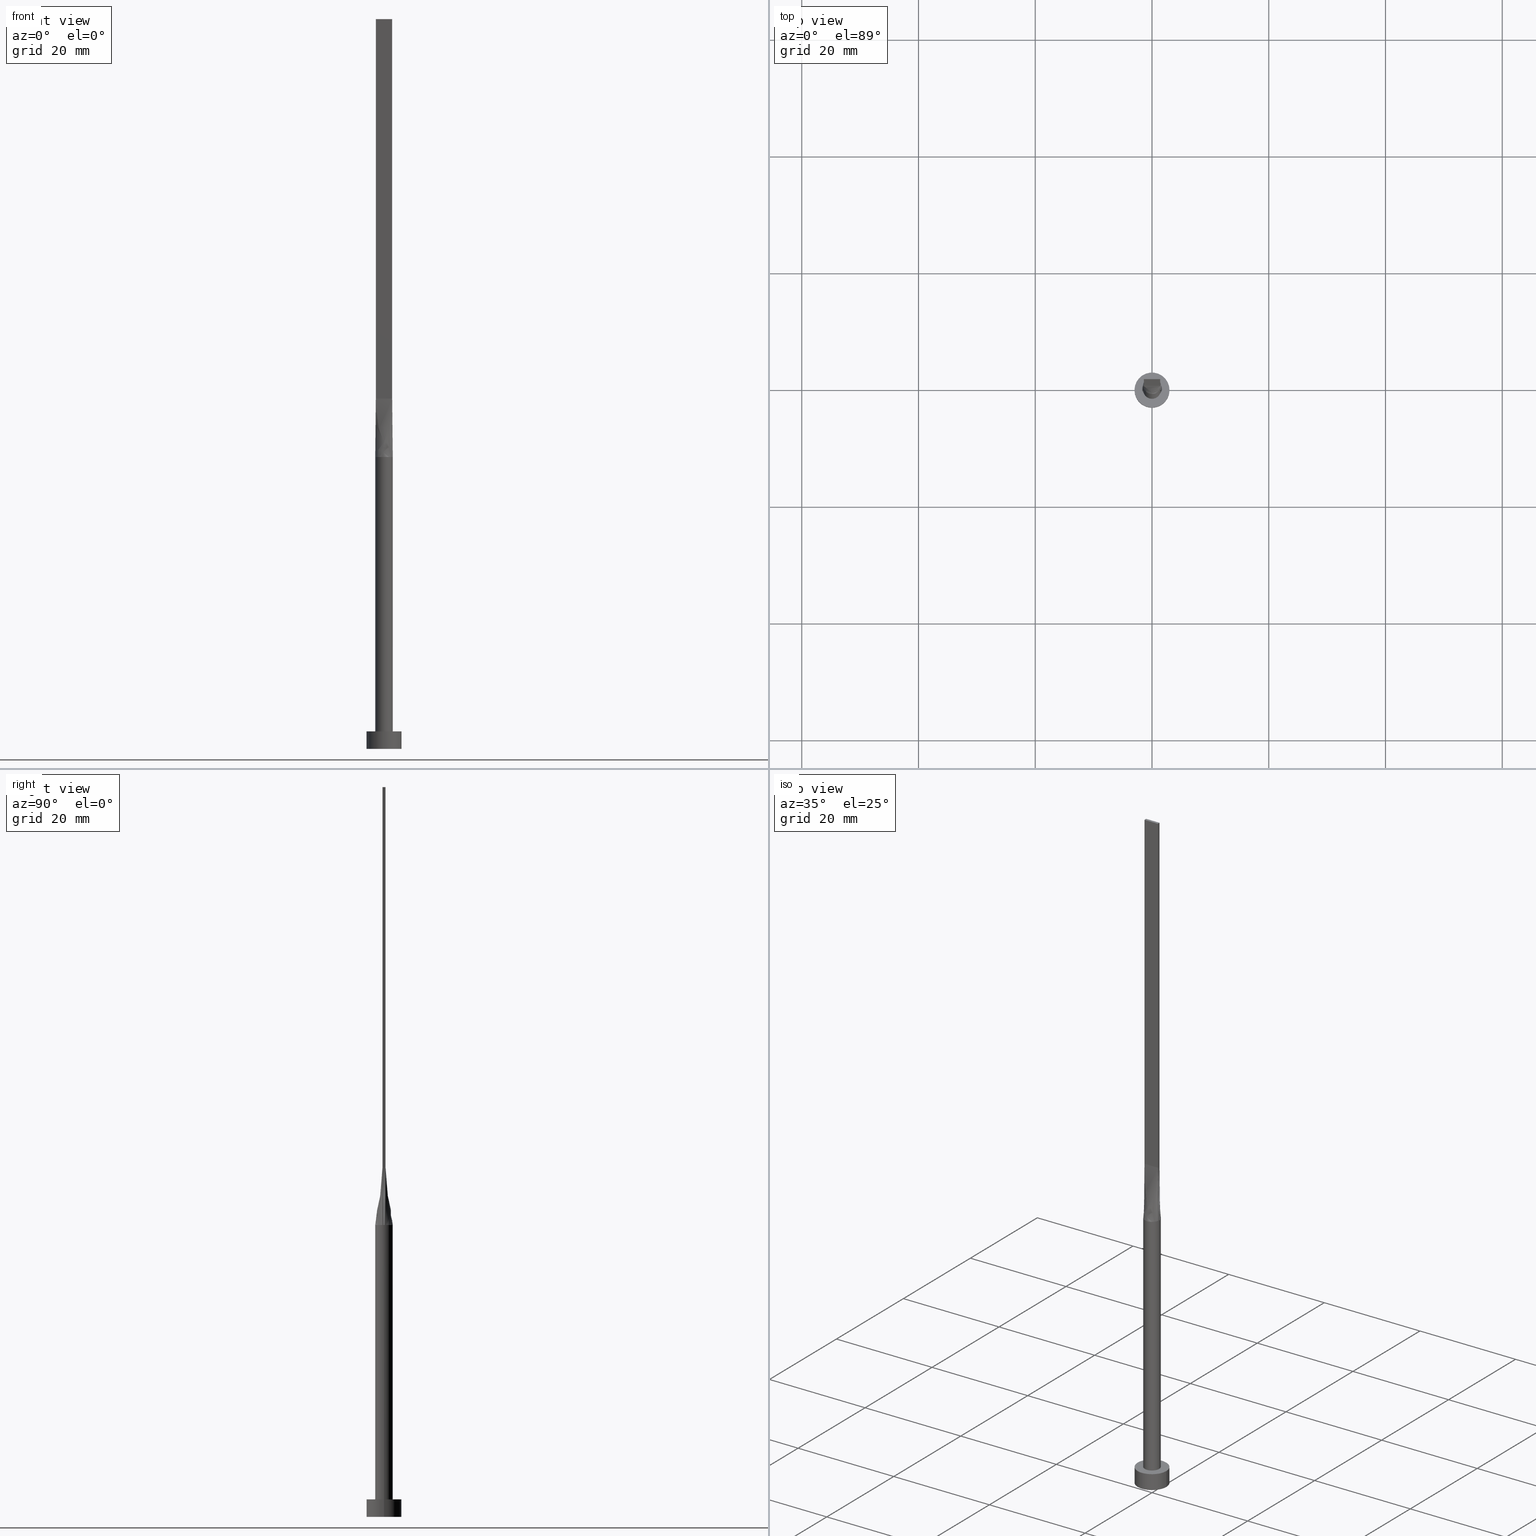
[diagram: canonical four-view strip — front | top / right | iso, engineering-drawing reading convention]
A machine part, canonical four-view strip (front | top / right | iso — engineering-drawing reading convention). The complete STEP part file that produces these views, byte-faithful:
ISO-10303-21;
HEADER;
FILE_DESCRIPTION (( 'STEP AP203' ),
    '1' );
FILE_NAME ('aee3.STEP',
    '2026-02-12T09:01:08',
    ( '' ),
    ( '' ),
    'SwSTEP 2.0',
    'SolidWorks 2019',
    '' );
FILE_SCHEMA (( 'CONFIG_CONTROL_DESIGN' ));
ENDSEC;

DATA;
#1 = EDGE_LOOP ( 'NONE', ( #327, #533 ) ) ;
#2 = CARTESIAN_POINT ( 'NONE',  ( -1.499909062348296462, -1.026848616785427865E-15, 50.00000000000000000 ) ) ;
#3 = EDGE_LOOP ( 'NONE', ( #501, #138, #59, #95 ) ) ;
#4 = CARTESIAN_POINT ( 'NONE',  ( 0.2093118330951404815, -1.500000000000000444, 50.00000000000001421 ) ) ;
#5 = CARTESIAN_POINT ( 'NONE',  ( 0.9436169880431068968, -1.179536671679308535, 50.00000000000000000 ) ) ;
#6 = APPROVAL ( #137, 'NEUR�EN�' ) ;
#7 = DATE_AND_TIME ( #234, #286 ) ;
#8 = CARTESIAN_POINT ( 'NONE',  ( -0.8166666666666675400, -0.2499999999999996669, 60.00000000000000000 ) ) ;
#9 = VECTOR ( 'NONE', #168, 999.9999999999998863 ) ;
#10 = EDGE_CURVE ( 'NONE', #381, #476, #571, .T. ) ;
#11 = AXIS2_PLACEMENT_3D ( 'NONE', #74, #467, #373 ) ;
#12 = COORDINATED_UNIVERSAL_TIME_OFFSET ( 1, 0, .AHEAD. ) ;
#13 = CARTESIAN_POINT ( 'NONE',  ( -1.492092537551969578, 0.1771593817057086351, 50.00000000000000000 ) ) ;
#14 = ORIENTED_EDGE ( 'NONE', *, *, #200, .F. ) ;
#15 = CARTESIAN_POINT ( 'NONE',  ( 1.416287091352355532, -0.5163978007200231701, 50.00000000000000711 ) ) ;
#16 = LINE ( 'NONE', #196, #131 ) ;
#17 = ORIENTED_EDGE ( 'NONE', *, *, #555, .T. ) ;
#18 = DIRECTION ( 'NONE',  ( 0.000000000000000000, 0.000000000000000000, 1.000000000000000000 ) ) ;
#19 = CARTESIAN_POINT ( 'NONE',  ( 0.000000000000000000, 0.000000000000000000, 50.00000000000000000 ) ) ;
#20 = DIRECTION ( 'NONE',  ( -0.007663904067361680499, 0.001368554297743197626, 0.9999696953576046043 ) ) ;
#21 = LOCAL_TIME ( 10, 1, 8.000000000000000000, #403 ) ;
#22 = CARTESIAN_POINT ( 'NONE',  ( -0.2333333333333336979, 0.2500000000000002220, 60.00000000000000000 ) ) ;
#23 = CC_DESIGN_SECURITY_CLASSIFICATION ( #445, ( #100 ) ) ;
#24 = CARTESIAN_POINT ( 'NONE',  ( -1.193588737715979731, 0.9257784320005616463, 49.99999999999999289 ) ) ;
#25 = EDGE_CURVE ( 'NONE', #537, #181, #294, .T. ) ;
#26 = CARTESIAN_POINT ( 'NONE',  ( 0.000000000000000000, 0.000000000000000000, 50.00000000000000000 ) ) ;
#27 = CARTESIAN_POINT ( 'NONE',  ( 1.476641363262723106, -0.2636859577254864750, 50.00000000000000000 ) ) ;
#28 = DIRECTION ( 'NONE',  ( -1.000000000000000000, 0.000000000000000000, 0.000000000000000000 ) ) ;
#29 = CARTESIAN_POINT ( 'NONE',  ( 1.476765312825354837, 0.2637079867918904474, 50.00000000000000000 ) ) ;
#30 = DIRECTION ( 'NONE',  ( 0.000000000000000000, 0.000000000000000000, 1.000000000000000000 ) ) ;
#31 = CYLINDRICAL_SURFACE ( 'NONE', #258, 1.500000000000000222 ) ;
#32 = ADVANCED_FACE ( 'NONE', ( #468 ), #300, .F. ) ;
#33 = PERSON_AND_ORGANIZATION ( #547, #306 ) ;
#34 = AXIS2_PLACEMENT_3D ( 'NONE', #104, #538, #317 ) ;
#35 = EDGE_LOOP ( 'NONE', ( #404, #46, #324, #185, #490, #385 ) ) ;
#36 = CARTESIAN_POINT ( 'NONE',  ( 0.000000000000000000, 0.000000000000000000, 3.000000000000000000 ) ) ;
#37 = ORIENTED_EDGE ( 'NONE', *, *, #217, .F. ) ;
#38 = CARTESIAN_POINT ( 'NONE',  ( -1.438320681631361619, -0.2568429788627425991, 55.00000000000000711 ) ) ;
#39 = CARTESIAN_POINT ( 'NONE',  ( -1.399999999999999911, -0.2499999999999996392, 60.00000000000000711 ) ) ;
#40 = EDGE_CURVE ( 'NONE', #287, #282, #515, .T. ) ;
#41 = CARTESIAN_POINT ( 'NONE',  ( 1.399999999999999911, -0.2499999999999997780, 125.0000000000000000 ) ) ;
#42 = B_SPLINE_SURFACE_WITH_KNOTS ( 'NONE', 3, 1, ( 
 ( #186, #322 ),
 ( #13, #193 ),
 ( #152, #150 ),
 ( #452, #540 ),
 ( #457, #96 ),
 ( #369, #491 ) ),
 .UNSPECIFIED., .F., .F., .F.,
 ( 4, 2, 4 ),
 ( 2, 2 ),
 ( 0.000000000000000000, 0.5000000000000000000, 1.000000000000000000 ),
 ( 0.000000000000000000, 1.000000000000000000 ),
 .UNSPECIFIED. ) ;
#43 = CIRCLE ( 'NONE', #407, 1.500000000000000222 ) ;
#44 = ORIENTED_EDGE ( 'NONE', *, *, #386, .T. ) ;
#45 = CARTESIAN_POINT ( 'NONE',  ( -1.438320681631361619, 0.2568429788627429322, 55.00000000000000711 ) ) ;
#46 = ORIENTED_EDGE ( 'NONE', *, *, #56, .F. ) ;
#47 = CARTESIAN_POINT ( 'NONE',  ( -1.283333333333333437, -0.2499999999999996669, 60.00000000000000711 ) ) ;
#48 = VERTEX_POINT ( 'NONE', #437 ) ;
#49 = CARTESIAN_POINT ( 'NONE',  ( -1.416287091352355532, -0.5163978007200222820, 50.00000000000000711 ) ) ;
#50 = EDGE_CURVE ( 'NONE', #210, #381, #338, .T. ) ;
#51 = VECTOR ( 'NONE', #263, 999.9999999999998863 ) ;
#52 = CARTESIAN_POINT ( 'NONE',  ( -1.476641363262723328, -0.2636859577254855869, 50.00000000000000000 ) ) ;
#53 = EDGE_CURVE ( 'NONE', #262, #423, #16, .T. ) ;
#54 = PERSON_AND_ORGANIZATION_ROLE ( 'design_supplier' ) ;
#55 = CARTESIAN_POINT ( 'NONE',  ( -1.285860877433235405, -0.7868275653575071971, 49.99999999999998579 ) ) ;
#56 = EDGE_CURVE ( 'NONE', #287, #114, #517, .T. ) ;
#57 = CARTESIAN_POINT ( 'NONE',  ( -0.5833333333333345916, -0.2499999999999996669, 60.00000000000000000 ) ) ;
#58 = AXIS2_PLACEMENT_3D ( 'NONE', #440, #89, #399 ) ;
#59 = ORIENTED_EDGE ( 'NONE', *, *, #550, .F. ) ;
#60 = AXIS2_PLACEMENT_3D ( 'NONE', #175, #353, #266 ) ;
#61 = CC_DESIGN_PERSON_AND_ORGANIZATION_ASSIGNMENT ( #417, #54, ( #100 ) ) ;
#62 = CC_DESIGN_APPROVAL ( #6, ( #445 ) ) ;
#63 = CARTESIAN_POINT ( 'NONE',  ( 1.455009719257779111, 0.3848231641531748570, 50.00000000000000711 ) ) ;
#64 = DIRECTION ( 'NONE',  ( -0.000000000000000000, -0.000000000000000000, -1.000000000000000000 ) ) ;
#65 = EDGE_LOOP ( 'NONE', ( #564, #344 ) ) ;
#66 = CARTESIAN_POINT ( 'NONE',  ( 1.193588737715979509, 0.9257784320005622014, 50.00000000000000000 ) ) ;
#67 = DIRECTION ( 'NONE',  ( -0.000000000000000000, -0.000000000000000000, -1.000000000000000000 ) ) ;
#68 = DIRECTION ( 'NONE',  ( 0.000000000000000000, -1.000000000000000000, 0.000000000000000000 ) ) ;
#69 = CARTESIAN_POINT ( 'NONE',  ( 0.4178861784692547432, 1.454504042781961770, 50.00000000000000711 ) ) ;
#70 = LINE ( 'NONE', #253, #110 ) ;
#71 = CARTESIAN_POINT ( 'NONE',  ( 1.455009719257779111, 0.3848231641531748570, 50.00000000000000711 ) ) ;
#72 = AXIS2_PLACEMENT_3D ( 'NONE', #296, #245, #161 ) ;
#73 = CARTESIAN_POINT ( 'NONE',  ( -0.9436169880431073409, 1.179536671679307647, 50.00000000000000000 ) ) ;
#74 = CARTESIAN_POINT ( 'NONE',  ( 0.000000000000000000, 0.000000000000000000, 50.00000000000000000 ) ) ;
#75 = DIRECTION ( 'NONE',  ( 0.000000000000000000, -0.000000000000000000, -1.000000000000000000 ) ) ;
#76 = PLANE ( 'NONE',  #505 ) ;
#77 = CARTESIAN_POINT ( 'NONE',  ( -1.476774769252511055, 0.2637095436881764510, 50.00000000000000000 ) ) ;
#78 = APPLICATION_CONTEXT ( 'configuration controlled 3d designs of mechanical parts and assemblies' ) ;
#79 =( NAMED_UNIT ( * ) PLANE_ANGLE_UNIT ( ) SI_UNIT ( $, .RADIAN. ) );
#80 = DIRECTION ( 'NONE',  ( 0.000000000000000000, 0.000000000000000000, 1.000000000000000000 ) ) ;
#81 = PERSON_AND_ORGANIZATION ( #547, #306 ) ;
#82 = ADVANCED_FACE ( 'NONE', ( #507 ), #535, .T. ) ;
#83 = AXIS2_PLACEMENT_3D ( 'NONE', #379, #558, #553 ) ;
#84 = ORIENTED_EDGE ( 'NONE', *, *, #56, .T. ) ;
#85 = CARTESIAN_POINT ( 'NONE',  ( 1.476789766994309527, -0.2637122300648489515, 50.00000000000000000 ) ) ;
#86 = LINE ( 'NONE', #39, #570 ) ;
#87 = EDGE_LOOP ( 'NONE', ( #166, #556, #205, #44 ) ) ;
#88 = LINE ( 'NONE', #41, #140 ) ;
#89 = DIRECTION ( 'NONE',  ( 0.000000000000000000, 0.000000000000000000, 1.000000000000000000 ) ) ;
#90 = CIRCLE ( 'NONE', #60, 3.000000000000000444 ) ;
#91 = DATE_AND_TIME ( #318, #21 ) ;
#92 = VERTEX_POINT ( 'NONE', #510 ) ;
#93 = CYLINDRICAL_SURFACE ( 'NONE', #285, 3.000000000000000444 ) ;
#94 = PERSON_AND_ORGANIZATION ( #547, #306 ) ;
#95 = ORIENTED_EDGE ( 'NONE', *, *, #25, .T. ) ;
#96 = CARTESIAN_POINT ( 'NONE',  ( -1.399999999999999911, -0.1666666666666662411, 60.00000000000000000 ) ) ;
#97 = APPROVAL_DATE_TIME ( #495, #432 ) ;
#98 = EDGE_CURVE ( 'NONE', #210, #423, #370, .T. ) ;
#99 = DIRECTION ( 'NONE',  ( 0.000000000000000000, 0.000000000000000000, 1.000000000000000000 ) ) ;
#100 = PRODUCT_DEFINITION_FORMATION_WITH_SPECIFIED_SOURCE ( 'LIBOVOLN�', '', #267, .NOT_KNOWN. ) ;
#101 = PERSON_AND_ORGANIZATION ( #547, #306 ) ;
#102 = DIRECTION ( 'NONE',  ( -0.000000000000000000, -0.000000000000000000, -1.000000000000000000 ) ) ;
#103 = SHAPE_DEFINITION_REPRESENTATION ( #394, #427 ) ;
#104 = CARTESIAN_POINT ( 'NONE',  ( 0.000000000000000000, 0.000000000000000000, 3.000000000000000000 ) ) ;
#105 = ADVANCED_FACE ( 'NONE', ( #503 ), #120, .F. ) ;
#106 = ORIENTED_EDGE ( 'NONE', *, *, #297, .F. ) ;
#107 = CARTESIAN_POINT ( 'NONE',  ( 0.7852726932053988307, 1.293660568283136358, 50.00000000000000711 ) ) ;
#108 = CARTESIAN_POINT ( 'NONE',  ( -1.285860877433235183, 0.7868275653575075301, 50.00000000000000000 ) ) ;
#109 = EDGE_CURVE ( 'NONE', #114, #210, #453, .T. ) ;
#110 = VECTOR ( 'NONE', #326, 1000.000000000000000 ) ;
#111 = EDGE_LOOP ( 'NONE', ( #363, #106, #525, #504 ) ) ;
#112 = CARTESIAN_POINT ( 'NONE',  ( 1.166666666666666741, 0.2500000000000002220, 60.00000000000001421 ) ) ;
#113 = CARTESIAN_POINT ( 'NONE',  ( -1.399999999999999911, -0.2499999999999996392, 125.0000000000000000 ) ) ;
#114 = VERTEX_POINT ( 'NONE', #336 ) ;
#115 = CARTESIAN_POINT ( 'NONE',  ( 0.5833333333333332593, 0.2500000000000002220, 60.00000000000000000 ) ) ;
#116 = FACE_OUTER_BOUND ( 'NONE', #552, .T. ) ;
#117 = DIRECTION ( 'NONE',  ( 1.000000000000000000, 0.000000000000000000, 0.000000000000000000 ) ) ;
#118 = CARTESIAN_POINT ( 'NONE',  ( -0.2093118330951410921, 1.500000000000000222, 50.00000000000001421 ) ) ;
#119 = CC_DESIGN_DATE_AND_TIME_ASSIGNMENT ( #275, #143, ( #445 ) ) ;
#120 = PLANE ( 'NONE',  #277 ) ;
#121 = CARTESIAN_POINT ( 'NONE',  ( 1.399999999999999911, 0.2500000000000002220, 125.0000000000000000 ) ) ;
#122 = CC_DESIGN_APPROVAL ( #432, ( #100 ) ) ;
#123 = CARTESIAN_POINT ( 'NONE',  ( -1.399999999999999911, 0.2500000000000002220, 125.0000000000000000 ) ) ;
#124 = CARTESIAN_POINT ( 'NONE',  ( 0.000000000000000000, 0.000000000000000000, 0.000000000000000000 ) ) ;
#125 = APPLICATION_PROTOCOL_DEFINITION ( 'international standard', 'config_control_design', 1994, #298 ) ;
#126 = ORIENTED_EDGE ( 'NONE', *, *, #98, .T. ) ;
#127 = ADVANCED_FACE ( 'NONE', ( #116 ), #31, .T. ) ;
#128 = CARTESIAN_POINT ( 'NONE',  ( 0.000000000000000000, 0.000000000000000000, 50.00000000000000000 ) ) ;
#129 = AXIS2_PLACEMENT_3D ( 'NONE', #139, #314, #355 ) ;
#130 = CARTESIAN_POINT ( 'NONE',  ( 1.399999999999999911, 0.2500000000000002220, 125.0000000000000000 ) ) ;
#131 = VECTOR ( 'NONE', #430, 1000.000000000000000 ) ;
#132 = VERTEX_POINT ( 'NONE', #554 ) ;
#133 = CARTESIAN_POINT ( 'NONE',  ( -1.399999999999999911, 0.2500000000000002220, 125.0000000000000000 ) ) ;
#134 = ORIENTED_EDGE ( 'NONE', *, *, #213, .F. ) ;
#135 = FACE_OUTER_BOUND ( 'NONE', #65, .T. ) ;
#136 = EDGE_CURVE ( 'NONE', #409, #48, #207, .T. ) ;
#137 = APPROVAL_STATUS ( 'not_yet_approved' ) ;
#138 = ORIENTED_EDGE ( 'NONE', *, *, #136, .F. ) ;
#139 = CARTESIAN_POINT ( 'NONE',  ( 0.000000000000000000, 0.000000000000000000, 3.000000000000000000 ) ) ;
#140 = VECTOR ( 'NONE', #526, 1000.000000000000000 ) ;
#141 = EDGE_CURVE ( 'NONE', #132, #316, #70, .T. ) ;
#142 = VECTOR ( 'NONE', #472, 1000.000000000000000 ) ;
#143 = DATE_TIME_ROLE ( 'classification_date' ) ;
#144 = ORIENTED_EDGE ( 'NONE', *, *, #249, .T. ) ;
#145 = DIRECTION ( 'NONE',  ( 0.000000000000000000, -1.000000000000000000, 0.000000000000000000 ) ) ;
#146 = APPROVAL_STATUS ( 'not_yet_approved' ) ;
#147 = CARTESIAN_POINT ( 'NONE',  ( -1.399999999999999911, -0.2499999999999996392, 60.00000000000000711 ) ) ;
#148 = ADVANCED_FACE ( 'NONE', ( #341 ), #559, .F. ) ;
#149 = SECURITY_CLASSIFICATION_LEVEL ( 'unclassified' ) ;
#150 = CARTESIAN_POINT ( 'NONE',  ( -1.399999999999999911, 0.08333333333333362014, 60.00000000000000000 ) ) ;
#151 = VECTOR ( 'NONE', #64, 1000.000000000000000 ) ;
#152 = CARTESIAN_POINT ( 'NONE',  ( -1.499818124696592481, 0.08857969085285440081, 50.00000000000000000 ) ) ;
#153 = ORIENTED_EDGE ( 'NONE', *, *, #550, .T. ) ;
#154 = CARTESIAN_POINT ( 'NONE',  ( -1.166666666666666963, -0.2499999999999996669, 60.00000000000000711 ) ) ;
#155 = CARTESIAN_POINT ( 'NONE',  ( 1.499818124696592481, -0.08857969085285472000, 50.00000000000000000 ) ) ;
#156 = ORIENTED_EDGE ( 'NONE', *, *, #223, .T. ) ;
#157 = DIRECTION ( 'NONE',  ( 0.000000000000000000, 0.000000000000000000, 1.000000000000000000 ) ) ;
#158 = DIRECTION ( 'NONE',  ( -1.000000000000000000, 0.000000000000000000, 0.000000000000000000 ) ) ;
#159 = EDGE_LOOP ( 'NONE', ( #239, #243, #493, #448, #309 ) ) ;
#160 = CARTESIAN_POINT ( 'NONE',  ( 0.9333333333333334592, 0.2500000000000002220, 60.00000000000000711 ) ) ;
#161 = DIRECTION ( 'NONE',  ( -1.000000000000000000, 5.808225924029488744E-17, 0.000000000000000000 ) ) ;
#162 = CARTESIAN_POINT ( 'NONE',  ( 1.416287091352355976, 0.5163978007200227260, 50.00000000000000711 ) ) ;
#163 = CC_DESIGN_DATE_AND_TIME_ASSIGNMENT ( #192, #411, ( #365 ) ) ;
#164 = CARTESIAN_POINT ( 'NONE',  ( 1.399999999999999911, -0.2499999999999997780, 125.0000000000000000 ) ) ;
#165 = DIRECTION ( 'NONE',  ( 0.000000000000000000, 0.000000000000000000, 1.000000000000000000 ) ) ;
#166 = ORIENTED_EDGE ( 'NONE', *, *, #281, .T. ) ;
#167 = CARTESIAN_POINT ( 'NONE',  ( -0.9333333333333335702, 0.2500000000000002220, 60.00000000000000000 ) ) ;
#168 = DIRECTION ( 'NONE',  ( -0.007663904067361702183, -0.001368554297743154041, 0.9999696953576046043 ) ) ;
#169 = AXIS2_PLACEMENT_3D ( 'NONE', #500, #414, #361 ) ;
#170 = LINE ( 'NONE', #179, #389 ) ;
#171 = CARTESIAN_POINT ( 'NONE',  ( -1.399999999999999911, 0.2500000000000002220, 60.00000000000000711 ) ) ;
#172 = DIRECTION ( 'NONE',  ( -0.000000000000000000, 0.000000000000000000, -1.000000000000000000 ) ) ;
#173 = EDGE_CURVE ( 'NONE', #92, #520, #384, .T. ) ;
#174 = VECTOR ( 'NONE', #332, 1000.000000000000000 ) ;
#175 = CARTESIAN_POINT ( 'NONE',  ( 0.000000000000000000, 0.000000000000000000, 3.000000000000000000 ) ) ;
#176 = VERTEX_POINT ( 'NONE', #471 ) ;
#177 = FACE_OUTER_BOUND ( 'NONE', #3, .T. ) ;
#178 = ORIENTED_EDGE ( 'NONE', *, *, #109, .F. ) ;
#179 = CARTESIAN_POINT ( 'NONE',  ( -1.399999999999999911, -0.2499999999999996392, 125.0000000000000000 ) ) ;
#180 = COORDINATED_UNIVERSAL_TIME_OFFSET ( 1, 0, .AHEAD. ) ;
#181 = VERTEX_POINT ( 'NONE', #566 ) ;
#182 = CARTESIAN_POINT ( 'NONE',  ( -1.455009719257779111, -0.3848231641531742464, 50.00000000000000711 ) ) ;
#183 = VECTOR ( 'NONE', #482, 999.9999999999998863 ) ;
#184 = EDGE_CURVE ( 'NONE', #262, #537, #518, .T. ) ;
#185 = ORIENTED_EDGE ( 'NONE', *, *, #499, .F. ) ;
#186 = CARTESIAN_POINT ( 'NONE',  ( -1.476641363262723328, 0.2636859577254859754, 50.00000000000000000 ) ) ;
#187 = EDGE_CURVE ( 'NONE', #388, #287, #461, .T. ) ;
#188 = CARTESIAN_POINT ( 'NONE',  ( 1.193588737715979509, -0.9257784320005624235, 49.99999999999998579 ) ) ;
#189 = CARTESIAN_POINT ( 'NONE',  ( -1.399999999999999911, -0.2499999999999996392, 125.0000000000000000 ) ) ;
#190 = VECTOR ( 'NONE', #20, 999.9999999999998863 ) ;
#191 = VECTOR ( 'NONE', #215, 1000.000000000000000 ) ;
#192 = DATE_AND_TIME ( #489, #352 ) ;
#193 = CARTESIAN_POINT ( 'NONE',  ( -1.399999999999999911, 0.1666666666666669072, 60.00000000000000000 ) ) ;
#194 = EDGE_LOOP ( 'NONE', ( #465, #481, #578, #156 ) ) ;
#195 = CARTESIAN_POINT ( 'NONE',  ( 0.9333333333333325710, -0.2499999999999997224, 60.00000000000000000 ) ) ;
#196 = CARTESIAN_POINT ( 'NONE',  ( 1.399999999999999911, 0.2500000000000002220, 125.0000000000000000 ) ) ;
#197 = EDGE_LOOP ( 'NONE', ( #548, #229, #17, #214 ) ) ;
#198 = CARTESIAN_POINT ( 'NONE',  ( -1.399999999999999911, 0.2500000000000002220, 125.0000000000000000 ) ) ;
#199 = CARTESIAN_POINT ( 'NONE',  ( 1.499818124696592481, 0.08857969085285435917, 50.00000000000000000 ) ) ;
#200 = EDGE_CURVE ( 'NONE', #423, #181, #443, .T. ) ;
#201 = AXIS2_PLACEMENT_3D ( 'NONE', #438, #30, #209 ) ;
#202 = CARTESIAN_POINT ( 'NONE',  ( 0.7852726932053988307, 1.293660568283136358, 50.00000000000000711 ) ) ;
#203 = CARTESIAN_POINT ( 'NONE',  ( 1.166666666666666075, -0.2499999999999997780, 60.00000000000000000 ) ) ;
#204 = CARTESIAN_POINT ( 'NONE',  ( 1.476641363262723106, -0.2636859577254868081, 50.00000000000000000 ) ) ;
#205 = ORIENTED_EDGE ( 'NONE', *, *, #291, .F. ) ;
#206 = FACE_OUTER_BOUND ( 'NONE', #522, .T. ) ;
#207 = LINE ( 'NONE', #113, #577 ) ;
#208 = ORIENTED_EDGE ( 'NONE', *, *, #184, .T. ) ;
#209 = DIRECTION ( 'NONE',  ( 1.000000000000000000, 0.000000000000000000, 0.000000000000000000 ) ) ;
#210 = VERTEX_POINT ( 'NONE', #347 ) ;
#211 = VECTOR ( 'NONE', #158, 1000.000000000000000 ) ;
#212 = PERSON_AND_ORGANIZATION_ROLE ( 'design_owner' ) ;
#213 = EDGE_CURVE ( 'NONE', #316, #520, #397, .T. ) ;
#214 = ORIENTED_EDGE ( 'NONE', *, *, #141, .F. ) ;
#215 = DIRECTION ( 'NONE',  ( -0.000000000000000000, -0.000000000000000000, -1.000000000000000000 ) ) ;
#216 = DIRECTION ( 'NONE',  ( 0.000000000000000000, 1.000000000000000000, 0.000000000000000000 ) ) ;
#217 = EDGE_CURVE ( 'NONE', #476, #304, #396, .T. ) ;
#218 = EDGE_CURVE ( 'NONE', #92, #132, #441, .T. ) ;
#219 = CARTESIAN_POINT ( 'NONE',  ( -1.476774769252511055, 0.2637095436881764510, 50.00000000000000000 ) ) ;
#220 = CC_DESIGN_PERSON_AND_ORGANIZATION_ASSIGNMENT ( #94, #408, ( #445 ) ) ;
#221 = ORIENTED_EDGE ( 'NONE', *, *, #25, .F. ) ;
#222 = CARTESIAN_POINT ( 'NONE',  ( -3.000000000000000444, 0.000000000000000000, 0.000000000000000000 ) ) ;
#223 = EDGE_CURVE ( 'NONE', #48, #388, #351, .T. ) ;
#224 = ORIENTED_EDGE ( 'NONE', *, *, #264, .F. ) ;
#225 = LINE ( 'NONE', #45, #183 ) ;
#226 = EDGE_CURVE ( 'NONE', #381, #181, #225, .T. ) ;
#227 = ORIENTED_EDGE ( 'NONE', *, *, #281, .F. ) ;
#228 = CARTESIAN_POINT ( 'NONE',  ( -0.4666666666666679508, -0.2499999999999996669, 60.00000000000000000 ) ) ;
#229 = ORIENTED_EDGE ( 'NONE', *, *, #173, .T. ) ;
#230 = CARTESIAN_POINT ( 'NONE',  ( -1.193588737715979731, -0.9257784320005619794, 50.00000000000000000 ) ) ;
#231 = MANIFOLD_SOLID_BREP ( 'P�idat vysunut�m5', #240 ) ;
#232 = CARTESIAN_POINT ( 'NONE',  ( -0.4178861784692555759, -1.454504042781961548, 50.00000000000001421 ) ) ;
#233 = UNCERTAINTY_MEASURE_WITH_UNIT (LENGTH_MEASURE( 1.000000000000000082E-05 ), #345, 'distance_accuracy_value', 'NONE');
#234 = CALENDAR_DATE ( 2026, 12, 2 ) ;
#235 = CARTESIAN_POINT ( 'NONE',  ( 1.399999999999999911, 0.2500000000000002220, 60.00000000000000711 ) ) ;
#236 = APPROVAL_ROLE ( '' ) ;
#237 = CARTESIAN_POINT ( 'NONE',  ( -0.1166666666666681257, -0.2499999999999996669, 60.00000000000000000 ) ) ;
#238 = CIRCLE ( 'NONE', #34, 1.500000000000000222 ) ;
#239 = ORIENTED_EDGE ( 'NONE', *, *, #10, .T. ) ;
#240 = CLOSED_SHELL ( 'NONE', ( #127, #402, #436, #406, #105, #530, #479, #82, #416, #575, #32, #348, #148, #487, #447 ) ) ;
#241 = CARTESIAN_POINT ( 'NONE',  ( 1.416287091352355976, 0.5163978007200227260, 50.00000000000000711 ) ) ;
#242 = CARTESIAN_POINT ( 'NONE',  ( 1.399999999999999911, 0.2500000000000002220, 125.0000000000000000 ) ) ;
#243 = ORIENTED_EDGE ( 'NONE', *, *, #499, .T. ) ;
#244 = CARTESIAN_POINT ( 'NONE',  ( 0.000000000000000000, 0.000000000000000000, 50.00000000000000000 ) ) ;
#245 = DIRECTION ( 'NONE',  ( 5.808225924029488744E-17, 1.000000000000000000, -0.000000000000000000 ) ) ;
#246 = CARTESIAN_POINT ( 'NONE',  ( 1.285860877433235405, 0.7868275653575075301, 49.99999999999999289 ) ) ;
#247 = CARTESIAN_POINT ( 'NONE',  ( 1.399999999999999911, 0.2500000000000002220, 60.00000000000000711 ) ) ;
#248 = CARTESIAN_POINT ( 'NONE',  ( -0.7852726932053990527, 1.293660568283136136, 50.00000000000000711 ) ) ;
#249 = EDGE_CURVE ( 'NONE', #114, #176, #581, .T. ) ;
#250 = LOCAL_TIME ( 10, 1, 8.000000000000000000, #278 ) ;
#251 = CARTESIAN_POINT ( 'NONE',  ( 0.4178861784692547432, 1.454504042781961770, 50.00000000000000711 ) ) ;
#252 = CARTESIAN_POINT ( 'NONE',  ( -0.5833333333333334814, 0.2500000000000002220, 60.00000000000000000 ) ) ;
#253 = CARTESIAN_POINT ( 'NONE',  ( -3.000000000000000444, 0.000000000000000000, 3.000000000000000000 ) ) ;
#254 = CARTESIAN_POINT ( 'NONE',  ( 1.438320681631361397, -0.2568429788627430987, 55.00000000000000711 ) ) ;
#255 = DIRECTION ( 'NONE',  ( -1.000000000000000000, 0.000000000000000000, 0.000000000000000000 ) ) ;
#256 = CARTESIAN_POINT ( 'NONE',  ( 1.399999999999999911, -0.1666666666666664631, 60.00000000000000000 ) ) ;
#257 = CARTESIAN_POINT ( 'NONE',  ( 1.500000000000000222, 1.836970198721030181E-16, 50.00000000000000000 ) ) ;
#258 = AXIS2_PLACEMENT_3D ( 'NONE', #551, #514, #28 ) ;
#259 = CARTESIAN_POINT ( 'NONE',  ( -1.476641363262723328, 0.2636859577254856424, 50.00000000000000000 ) ) ;
#260 = EDGE_CURVE ( 'NONE', #48, #282, #86, .T. ) ;
#261 = CARTESIAN_POINT ( 'NONE',  ( 1.399999999999999911, -0.2499999999999997780, 125.0000000000000000 ) ) ;
#262 = VERTEX_POINT ( 'NONE', #130 ) ;
#263 = DIRECTION ( 'NONE',  ( -0.007663904067361702183, -0.001368554297743126936, -0.9999696953576046043 ) ) ;
#264 = EDGE_CURVE ( 'NONE', #409, #508, #170, .T. ) ;
#265 = EDGE_LOOP ( 'NONE', ( #134, #313 ) ) ;
#266 = DIRECTION ( 'NONE',  ( 1.000000000000000000, 0.000000000000000000, 0.000000000000000000 ) ) ;
#267 = PRODUCT ( 'aee3', 'aee3', '', ( #343 ) ) ;
#268 = AXIS2_PLACEMENT_3D ( 'NONE', #19, #333, #563 ) ;
#269 = CIRCLE ( 'NONE', #330, 3.000000000000000444 ) ;
#270 = CARTESIAN_POINT ( 'NONE',  ( 0.000000000000000000, 0.000000000000000000, 3.000000000000000000 ) ) ;
#271 = ORIENTED_EDGE ( 'NONE', *, *, #260, .T. ) ;
#272 = DIRECTION ( 'NONE',  ( -1.000000000000000000, 0.000000000000000000, 0.000000000000000000 ) ) ;
#273 = ORIENTED_EDGE ( 'NONE', *, *, #386, .F. ) ;
#274 = FACE_OUTER_BOUND ( 'NONE', #194, .T. ) ;
#275 = DATE_AND_TIME ( #497, #342 ) ;
#276 = CARTESIAN_POINT ( 'NONE',  ( -0.7852726932053994968, -1.293660568283136136, 50.00000000000000711 ) ) ;
#277 = AXIS2_PLACEMENT_3D ( 'NONE', #124, #165, #478 ) ;
#278 = COORDINATED_UNIVERSAL_TIME_OFFSET ( 1, 0, .AHEAD. ) ;
#279 = DIRECTION ( 'NONE',  ( 1.000000000000000000, 0.000000000000000000, -0.000000000000000000 ) ) ;
#280 = CARTESIAN_POINT ( 'NONE',  ( 0.5833333333333321491, -0.2499999999999996669, 60.00000000000000000 ) ) ;
#281 = EDGE_CURVE ( 'NONE', #282, #423, #310, .T. ) ;
#282 = VERTEX_POINT ( 'NONE', #401 ) ;
#283 = CYLINDRICAL_SURFACE ( 'NONE', #83, 1.500000000000000222 ) ;
#284 = CARTESIAN_POINT ( 'NONE',  ( 1.399999999999999911, -0.08333333333333316217, 60.00000000000000000 ) ) ;
#285 = AXIS2_PLACEMENT_3D ( 'NONE', #323, #102, #272 ) ;
#286 = LOCAL_TIME ( 10, 1, 8.000000000000000000, #492 ) ;
#287 = VERTEX_POINT ( 'NONE', #85 ) ;
#288 = FACE_OUTER_BOUND ( 'NONE', #35, .T. ) ;
#289 = CARTESIAN_POINT ( 'NONE',  ( 1.438320681631361619, 0.2568429788627433208, 55.00000000000000711 ) ) ;
#290 = EDGE_LOOP ( 'NONE', ( #271, #273, #224, #360 ) ) ;
#291 = EDGE_CURVE ( 'NONE', #508, #262, #579, .T. ) ;
#292 = CARTESIAN_POINT ( 'NONE',  ( 1.283333333333332993, -0.2499999999999997780, 60.00000000000000000 ) ) ;
#293 = CARTESIAN_POINT ( 'NONE',  ( 3.000000000000000444, 3.673940397442060361E-16, 3.000000000000000000 ) ) ;
#294 = LINE ( 'NONE', #567, #142 ) ;
#295 = CARTESIAN_POINT ( 'NONE',  ( 0.9436169880431070078, 1.179536671679307869, 50.00000000000001421 ) ) ;
#296 = CARTESIAN_POINT ( 'NONE',  ( -1.399999999999999911, -0.2499999999999996392, 125.0000000000000000 ) ) ;
#297 = EDGE_CURVE ( 'NONE', #132, #92, #90, .T. ) ;
#298 = APPLICATION_CONTEXT ( 'configuration controlled 3d designs of mechanical parts and assemblies' ) ;
#299 =( GEOMETRIC_REPRESENTATION_CONTEXT ( 3 ) GLOBAL_UNCERTAINTY_ASSIGNED_CONTEXT ( ( #233 ) ) GLOBAL_UNIT_ASSIGNED_CONTEXT ( ( #345, #79, #521 ) ) REPRESENTATION_CONTEXT ( 'NONE', 'WORKASPACE' ) );
#300 = PLANE ( 'NONE',  #560 ) ;
#301 = CARTESIAN_POINT ( 'NONE',  ( 0.000000000000000000, 0.000000000000000000, 0.000000000000000000 ) ) ;
#302 = CARTESIAN_POINT ( 'NONE',  ( -0.9436169880431073409, 1.179536671679307647, 50.00000000000000000 ) ) ;
#303 = APPROVAL_STATUS ( 'not_yet_approved' ) ;
#304 = VERTEX_POINT ( 'NONE', #358 ) ;
#305 = DIRECTION ( 'NONE',  ( 1.000000000000000000, -5.808225924029488744E-17, 0.000000000000000000 ) ) ;
#306 = ORGANIZATION ( 'NEUR�EN�', 'NEUR�EN�', '' ) ;
#307 = CARTESIAN_POINT ( 'NONE',  ( -1.455009719257779111, 0.3848231641531745795, 50.00000000000000711 ) ) ;
#308 = DIRECTION ( 'NONE',  ( -0.000000000000000000, 1.000000000000000000, -0.000000000000000000 ) ) ;
#309 = ORIENTED_EDGE ( 'NONE', *, *, #226, .F. ) ;
#310 = LINE ( 'NONE', #393, #312 ) ;
#311 = DIRECTION ( 'NONE',  ( -0.000000000000000000, -0.000000000000000000, -1.000000000000000000 ) ) ;
#312 = VECTOR ( 'NONE', #308, 1000.000000000000000 ) ;
#313 = ORIENTED_EDGE ( 'NONE', *, *, #555, .F. ) ;
#314 = DIRECTION ( 'NONE',  ( -0.000000000000000000, -0.000000000000000000, -1.000000000000000000 ) ) ;
#315 = AXIS2_PLACEMENT_3D ( 'NONE', #26, #337, #117 ) ;
#316 = VERTEX_POINT ( 'NONE', #222 ) ;
#317 = DIRECTION ( 'NONE',  ( 1.000000000000000000, 0.000000000000000000, 0.000000000000000000 ) ) ;
#318 = CALENDAR_DATE ( 2026, 12, 2 ) ;
#319 = CARTESIAN_POINT ( 'NONE',  ( 0.2333333333333319215, -0.2499999999999996669, 60.00000000000000000 ) ) ;
#320 = PERSON_AND_ORGANIZATION ( #547, #306 ) ;
#321 = CC_DESIGN_PERSON_AND_ORGANIZATION_ASSIGNMENT ( #413, #456, ( #100 ) ) ;
#322 = CARTESIAN_POINT ( 'NONE',  ( -1.399999999999999911, 0.2500000000000002220, 60.00000000000000711 ) ) ;
#323 = CARTESIAN_POINT ( 'NONE',  ( 0.000000000000000000, 0.000000000000000000, 3.000000000000000000 ) ) ;
#324 = ORIENTED_EDGE ( 'NONE', *, *, #187, .F. ) ;
#325 = FACE_OUTER_BOUND ( 'NONE', #87, .T. ) ;
#326 = DIRECTION ( 'NONE',  ( -0.000000000000000000, -0.000000000000000000, -1.000000000000000000 ) ) ;
#327 = ORIENTED_EDGE ( 'NONE', *, *, #470, .F. ) ;
#328 = DIRECTION ( 'NONE',  ( 0.000000000000000000, 0.000000000000000000, 1.000000000000000000 ) ) ;
#329 = CARTESIAN_POINT ( 'NONE',  ( -1.416287091352355976, 0.5163978007200225040, 50.00000000000000711 ) ) ;
#330 = AXIS2_PLACEMENT_3D ( 'NONE', #301, #157, #462 ) ;
#331 = EDGE_LOOP ( 'NONE', ( #84, #350, #126, #227, #400 ) ) ;
#332 = DIRECTION ( 'NONE',  ( 0.000000000000000000, -1.000000000000000000, 0.000000000000000000 ) ) ;
#333 = DIRECTION ( 'NONE',  ( 0.000000000000000000, 0.000000000000000000, 1.000000000000000000 ) ) ;
#334 = CARTESIAN_POINT ( 'NONE',  ( 0.9436169880431070078, 1.179536671679307869, 50.00000000000001421 ) ) ;
#335 = DIRECTION ( 'NONE',  ( 1.000000000000000000, 0.000000000000000000, 0.000000000000000000 ) ) ;
#336 = CARTESIAN_POINT ( 'NONE',  ( 1.499909062348296462, 3.515891419768138559E-16, 50.00000000000000000 ) ) ;
#337 = DIRECTION ( 'NONE',  ( 0.000000000000000000, 0.000000000000000000, 1.000000000000000000 ) ) ;
#338 = B_SPLINE_CURVE_WITH_KNOTS ( 'NONE', 3,
 ( #29, #71, #162, #246, #428, #334, #202, #251, #433, #378, #561, #248, #302, #24, #108, #329, #425, #77 ),
 .UNSPECIFIED., .F., .F.,
 ( 4, 2, 2, 2, 2, 2, 2, 2, 4 ),
 ( 0.000000000000000000, 0.1249999999999999167, 0.2499999999999998335, 0.3749999999999998335, 0.4999999999999998890, 0.6249999999999998890, 0.7499999999999998890, 0.8750000000000000000, 1.000000000000000000 ),
 .UNSPECIFIED. ) ;
#339 = CARTESIAN_POINT ( 'NONE',  ( -1.416287091352355976, 0.5163978007200225040, 50.00000000000000711 ) ) ;
#340 = CC_DESIGN_PERSON_AND_ORGANIZATION_ASSIGNMENT ( #320, #458, ( #365 ) ) ;
#341 = FACE_OUTER_BOUND ( 'NONE', #290, .T. ) ;
#342 = LOCAL_TIME ( 10, 1, 8.000000000000000000, #12 ) ;
#343 = MECHANICAL_CONTEXT ( 'NONE', #78, 'mechanical' ) ;
#344 = ORIENTED_EDGE ( 'NONE', *, *, #218, .T. ) ;
#345 =( LENGTH_UNIT ( ) NAMED_UNIT ( * ) SI_UNIT ( .MILLI., .METRE. ) );
#346 = EDGE_LOOP ( 'NONE', ( #392, #221, #374, #371 ) ) ;
#347 = CARTESIAN_POINT ( 'NONE',  ( 1.476765312825354837, 0.2637079867918904474, 50.00000000000000000 ) ) ;
#348 = ADVANCED_FACE ( 'NONE', ( #177 ), #395, .F. ) ;
#349 = CARTESIAN_POINT ( 'NONE',  ( 0.000000000000000000, 0.000000000000000000, 0.000000000000000000 ) ) ;
#350 = ORIENTED_EDGE ( 'NONE', *, *, #109, .T. ) ;
#351 = LINE ( 'NONE', #38, #51 ) ;
#352 = LOCAL_TIME ( 10, 1, 8.000000000000000000, #180 ) ;
#353 = DIRECTION ( 'NONE',  ( 0.000000000000000000, 0.000000000000000000, 1.000000000000000000 ) ) ;
#354 = ORIENTED_EDGE ( 'NONE', *, *, #50, .F. ) ;
#355 = DIRECTION ( 'NONE',  ( -1.000000000000000000, 0.000000000000000000, 0.000000000000000000 ) ) ;
#356 = B_SPLINE_SURFACE_WITH_KNOTS ( 'NONE', 3, 1, ( 
 ( #387, #247 ),
 ( #63, #375 ),
 ( #241, #112 ),
 ( #568, #160 ),
 ( #66, #509 ),
 ( #295, #115 ),
 ( #107, #421 ),
 ( #69, #473 ),
 ( #565, #429 ),
 ( #118, #516 ),
 ( #372, #22 ),
 ( #562, #513 ),
 ( #73, #252 ),
 ( #434, #383 ),
 ( #477, #167 ),
 ( #339, #391 ),
 ( #307, #483 ),
 ( #259, #171 ) ),
 .UNSPECIFIED., .F., .F., .F.,
 ( 4, 2, 2, 2, 2, 2, 2, 2, 4 ),
 ( 2, 2 ),
 ( 0.000000000000000000, 0.1249999999999999167, 0.2499999999999998335, 0.3749999999999998335, 0.4999999999999998890, 0.6249999999999998890, 0.7499999999999998890, 0.8750000000000000000, 1.000000000000000000 ),
 ( 0.000000000000000000, 1.000000000000000000 ),
 .UNSPECIFIED. ) ;
#357 = ORIENTED_EDGE ( 'NONE', *, *, #512, .T. ) ;
#358 = CARTESIAN_POINT ( 'NONE',  ( -1.500000000000000222, 0.000000000000000000, 3.000000000000000000 ) ) ;
#359 = AXIS2_PLACEMENT_3D ( 'NONE', #270, #99, #279 ) ;
#360 = ORIENTED_EDGE ( 'NONE', *, *, #136, .T. ) ;
#361 = DIRECTION ( 'NONE',  ( 1.000000000000000000, 0.000000000000000000, -0.000000000000000000 ) ) ;
#362 = APPROVAL_DATE_TIME ( #91, #545 ) ;
#363 = ORIENTED_EDGE ( 'NONE', *, *, #173, .F. ) ;
#364 = CARTESIAN_POINT ( 'NONE',  ( 0.4178861784692542991, -1.454504042781961548, 50.00000000000000000 ) ) ;
#365 = PRODUCT_DEFINITION ( 'NEZN�M�', '', #100, #415 ) ;
#366 = LINE ( 'NONE', #494, #527 ) ;
#367 = CARTESIAN_POINT ( 'NONE',  ( -0.9333333333333340143, -0.2499999999999996669, 60.00000000000000000 ) ) ;
#368 = CC_DESIGN_APPROVAL ( #545, ( #365 ) ) ;
#369 = CARTESIAN_POINT ( 'NONE',  ( -1.476641363262723328, -0.2636859577254855869, 50.00000000000000000 ) ) ;
#370 = LINE ( 'NONE', #289, #9 ) ;
#371 = ORIENTED_EDGE ( 'NONE', *, *, #53, .T. ) ;
#372 = CARTESIAN_POINT ( 'NONE',  ( -0.4178861784692550208, 1.454504042781961326, 50.00000000000000000 ) ) ;
#373 = DIRECTION ( 'NONE',  ( 1.000000000000000000, 0.000000000000000000, 0.000000000000000000 ) ) ;
#374 = ORIENTED_EDGE ( 'NONE', *, *, #184, .F. ) ;
#375 = CARTESIAN_POINT ( 'NONE',  ( 1.283333333333333437, 0.2500000000000002220, 60.00000000000001421 ) ) ;
#376 = CARTESIAN_POINT ( 'NONE',  ( 1.492092537551969578, 0.1771593817057089126, 50.00000000000000000 ) ) ;
#377 = APPROVAL_PERSON_ORGANIZATION ( #33, #545, #236 ) ;
#378 = CARTESIAN_POINT ( 'NONE',  ( -0.2093118330951410921, 1.500000000000000222, 50.00000000000001421 ) ) ;
#379 = CARTESIAN_POINT ( 'NONE',  ( 0.000000000000000000, 0.000000000000000000, 50.00000000000000000 ) ) ;
#380 = CARTESIAN_POINT ( 'NONE',  ( 1.476641363262723328, 0.2636859577254864750, 50.00000000000000000 ) ) ;
#381 = VERTEX_POINT ( 'NONE', #219 ) ;
#382 = PRODUCT_RELATED_PRODUCT_CATEGORY ( 'detail', '', ( #267 ) ) ;
#383 = CARTESIAN_POINT ( 'NONE',  ( -0.8166666666666668739, 0.2500000000000002220, 60.00000000000000000 ) ) ;
#384 = LINE ( 'NONE', #293, #151 ) ;
#385 = ORIENTED_EDGE ( 'NONE', *, *, #470, .T. ) ;
#386 = EDGE_CURVE ( 'NONE', #508, #282, #88, .T. ) ;
#387 = CARTESIAN_POINT ( 'NONE',  ( 1.476641363262723328, 0.2636859577254862530, 50.00000000000000000 ) ) ;
#388 = VERTEX_POINT ( 'NONE', #534 ) ;
#389 = VECTOR ( 'NONE', #574, 1000.000000000000000 ) ;
#390 = AXIS2_PLACEMENT_3D ( 'NONE', #133, #484, #172 ) ;
#391 = CARTESIAN_POINT ( 'NONE',  ( -1.166666666666666963, 0.2500000000000002220, 60.00000000000000000 ) ) ;
#392 = ORIENTED_EDGE ( 'NONE', *, *, #200, .T. ) ;
#393 = CARTESIAN_POINT ( 'NONE',  ( 1.399999999999999911, 0.2500000000000002220, 60.00000000000000711 ) ) ;
#394 = PRODUCT_DEFINITION_SHAPE ( 'NONE', 'NONE',  #365 ) ;
#395 = PLANE ( 'NONE',  #390 ) ;
#396 = LINE ( 'NONE', #573, #419 ) ;
#397 = CIRCLE ( 'NONE', #58, 3.000000000000000444 ) ;
#398 = ORIENTED_EDGE ( 'NONE', *, *, #226, .T. ) ;
#399 = DIRECTION ( 'NONE',  ( 1.000000000000000000, 0.000000000000000000, 0.000000000000000000 ) ) ;
#400 = ORIENTED_EDGE ( 'NONE', *, *, #40, .F. ) ;
#401 = CARTESIAN_POINT ( 'NONE',  ( 1.399999999999999911, -0.2499999999999997780, 60.00000000000000711 ) ) ;
#402 = ADVANCED_FACE ( 'NONE', ( #485 ), #444, .T. ) ;
#403 = COORDINATED_UNIVERSAL_TIME_OFFSET ( 1, 0, .AHEAD. ) ;
#404 = ORIENTED_EDGE ( 'NONE', *, *, #249, .F. ) ;
#405 = CARTESIAN_POINT ( 'NONE',  ( -0.2093118330951414807, -1.500000000000000666, 50.00000000000000711 ) ) ;
#406 = ADVANCED_FACE ( 'NONE', ( #531, #135 ), #486, .T. ) ;
#407 = AXIS2_PLACEMENT_3D ( 'NONE', #244, #328, #335 ) ;
#408 = PERSON_AND_ORGANIZATION_ROLE ( 'classification_officer' ) ;
#409 = VERTEX_POINT ( 'NONE', #189 ) ;
#410 = CARTESIAN_POINT ( 'NONE',  ( -0.9436169880431074519, -1.179536671679307647, 50.00000000000001421 ) ) ;
#411 = DATE_TIME_ROLE ( 'creation_date' ) ;
#412 = CARTESIAN_POINT ( 'NONE',  ( 0.4666666666666653418, -0.2499999999999996669, 60.00000000000000000 ) ) ;
#413 = PERSON_AND_ORGANIZATION ( #547, #306 ) ;
#414 = DIRECTION ( 'NONE',  ( 0.000000000000000000, 0.000000000000000000, 1.000000000000000000 ) ) ;
#415 = DESIGN_CONTEXT ( 'detailed design', #298, 'design' ) ;
#416 = ADVANCED_FACE ( 'NONE', ( #549 ), #42, .T. ) ;
#417 = PERSON_AND_ORGANIZATION ( #547, #306 ) ;
#418 = CARTESIAN_POINT ( 'NONE',  ( 1.285860877433234961, -0.7868275653575079742, 50.00000000000000711 ) ) ;
#419 = VECTOR ( 'NONE', #311, 1000.000000000000000 ) ;
#420 = ORIENTED_EDGE ( 'NONE', *, *, #50, .T. ) ;
#421 = CARTESIAN_POINT ( 'NONE',  ( 0.4666666666666666186, 0.2500000000000002220, 60.00000000000000000 ) ) ;
#422 = CARTESIAN_POINT ( 'NONE',  ( 1.492092537551969356, -0.1771593817057092457, 50.00000000000000000 ) ) ;
#423 = VERTEX_POINT ( 'NONE', #235 ) ;
#424 = CARTESIAN_POINT ( 'NONE',  ( 1.399999999999999911, -0.2499999999999997780, 60.00000000000000711 ) ) ;
#425 = CARTESIAN_POINT ( 'NONE',  ( -1.455009719257779111, 0.3848231641531745795, 50.00000000000000711 ) ) ;
#426 = EDGE_CURVE ( 'NONE', #181, #48, #366, .T. ) ;
#427 = ADVANCED_BREP_SHAPE_REPRESENTATION ( 'aee3', ( #231, #557 ), #299 ) ;
#428 = CARTESIAN_POINT ( 'NONE',  ( 1.193588737715979509, 0.9257784320005622014, 50.00000000000000000 ) ) ;
#429 = CARTESIAN_POINT ( 'NONE',  ( 0.1166666666666661967, 0.2500000000000002220, 59.99999999999999289 ) ) ;
#430 = DIRECTION ( 'NONE',  ( -0.000000000000000000, -0.000000000000000000, -1.000000000000000000 ) ) ;
#431 = APPROVAL_PERSON_ORGANIZATION ( #532, #432, #454 ) ;
#432 = APPROVAL ( #146, 'NEUR�EN�' ) ;
#433 = CARTESIAN_POINT ( 'NONE',  ( 0.2093118330951408979, 1.500000000000000666, 50.00000000000000711 ) ) ;
#434 = CARTESIAN_POINT ( 'NONE',  ( -1.193588737715979731, 0.9257784320005616463, 49.99999999999999289 ) ) ;
#435 = CARTESIAN_POINT ( 'NONE',  ( 1.399999999999999911, -0.2499999999999997780, 60.00000000000000711 ) ) ;
#436 = ADVANCED_FACE ( 'NONE', ( #498 ), #93, .T. ) ;
#437 = CARTESIAN_POINT ( 'NONE',  ( -1.399999999999999911, -0.2499999999999996392, 60.00000000000000711 ) ) ;
#438 = CARTESIAN_POINT ( 'NONE',  ( 0.000000000000000000, 0.000000000000000000, 3.000000000000000000 ) ) ;
#439 = CARTESIAN_POINT ( 'NONE',  ( 1.399999999999999911, 0.1666666666666668517, 60.00000000000000000 ) ) ;
#440 = CARTESIAN_POINT ( 'NONE',  ( 0.000000000000000000, 0.000000000000000000, 0.000000000000000000 ) ) ;
#441 = CIRCLE ( 'NONE', #488, 3.000000000000000444 ) ;
#442 = CARTESIAN_POINT ( 'NONE',  ( -1.399999999999999911, 0.2500000000000002220, 60.00000000000000711 ) ) ;
#443 = LINE ( 'NONE', #442, #536 ) ;
#444 = CYLINDRICAL_SURFACE ( 'NONE', #129, 3.000000000000000444 ) ;
#445 = SECURITY_CLASSIFICATION ( '', '', #149 ) ;
#446 = DIRECTION ( 'NONE',  ( 1.000000000000000000, 0.000000000000000000, 0.000000000000000000 ) ) ;
#447 = ADVANCED_FACE ( 'NONE', ( #455 ), #449, .T. ) ;
#448 = ORIENTED_EDGE ( 'NONE', *, *, #426, .F. ) ;
#449 = PLANE ( 'NONE',  #169 ) ;
#450 = CC_DESIGN_PERSON_AND_ORGANIZATION_ASSIGNMENT ( #81, #212, ( #267 ) ) ;
#451 = ORIENTED_EDGE ( 'NONE', *, *, #264, .T. ) ;
#452 = CARTESIAN_POINT ( 'NONE',  ( -1.499818124696592481, -0.08857969085285403998, 50.00000000000000000 ) ) ;
#453 = CIRCLE ( 'NONE', #11, 1.500000000000000222 ) ;
#454 = APPROVAL_ROLE ( '' ) ;
#455 = FACE_OUTER_BOUND ( 'NONE', #569, .T. ) ;
#456 = PERSON_AND_ORGANIZATION_ROLE ( 'creator' ) ;
#457 = CARTESIAN_POINT ( 'NONE',  ( -1.492092537551969578, -0.1771593817057082465, 50.00000000000000000 ) ) ;
#458 = PERSON_AND_ORGANIZATION_ROLE ( 'creator' ) ;
#459 = CARTESIAN_POINT ( 'NONE',  ( 0.8166666666666658747, -0.2499999999999996669, 60.00000000000000000 ) ) ;
#460 = ORIENTED_EDGE ( 'NONE', *, *, #98, .F. ) ;
#461 = CIRCLE ( 'NONE', #519, 1.500000000000000222 ) ;
#462 = DIRECTION ( 'NONE',  ( 1.000000000000000000, 0.000000000000000000, 0.000000000000000000 ) ) ;
#463 = CARTESIAN_POINT ( 'NONE',  ( 1.399999999999999911, 0.08333333333333349524, 60.00000000000000000 ) ) ;
#464 = APPROVAL_PERSON_ORGANIZATION ( #101, #6, #541 ) ;
#465 = ORIENTED_EDGE ( 'NONE', *, *, #187, .T. ) ;
#466 = LINE ( 'NONE', #198, #174 ) ;
#467 = DIRECTION ( 'NONE',  ( 0.000000000000000000, 0.000000000000000000, 1.000000000000000000 ) ) ;
#468 = FACE_OUTER_BOUND ( 'NONE', #346, .T. ) ;
#469 = CARTESIAN_POINT ( 'NONE',  ( 1.399999999999999911, -0.2499999999999997780, 125.0000000000000000 ) ) ;
#470 = EDGE_CURVE ( 'NONE', #304, #176, #238, .T. ) ;
#471 = CARTESIAN_POINT ( 'NONE',  ( 1.500000000000000222, 1.836970198721030181E-16, 3.000000000000000000 ) ) ;
#472 = DIRECTION ( 'NONE',  ( -0.000000000000000000, -0.000000000000000000, -1.000000000000000000 ) ) ;
#473 = CARTESIAN_POINT ( 'NONE',  ( 0.2333333333333330317, 0.2500000000000002220, 60.00000000000000000 ) ) ;
#474 = CARTESIAN_POINT ( 'NONE',  ( 1.399999999999999911, 0.2500000000000002220, 60.00000000000000711 ) ) ;
#475 = VECTOR ( 'NONE', #216, 1000.000000000000000 ) ;
#476 = VERTEX_POINT ( 'NONE', #2 ) ;
#477 = CARTESIAN_POINT ( 'NONE',  ( -1.285860877433235183, 0.7868275653575075301, 50.00000000000000000 ) ) ;
#478 = DIRECTION ( 'NONE',  ( 1.000000000000000000, 0.000000000000000000, -0.000000000000000000 ) ) ;
#479 = ADVANCED_FACE ( 'NONE', ( #274 ), #529, .T. ) ;
#480 = DIRECTION ( 'NONE',  ( 1.000000000000000000, 0.000000000000000000, 0.000000000000000000 ) ) ;
#481 = ORIENTED_EDGE ( 'NONE', *, *, #40, .T. ) ;
#482 = DIRECTION ( 'NONE',  ( 0.007663904067361702183, -0.001368554297743072943, 0.9999696953576046043 ) ) ;
#483 = CARTESIAN_POINT ( 'NONE',  ( -1.283333333333333437, 0.2500000000000002220, 60.00000000000000000 ) ) ;
#484 = DIRECTION ( 'NONE',  ( 1.000000000000000000, 0.000000000000000000, -0.000000000000000000 ) ) ;
#485 = FACE_OUTER_BOUND ( 'NONE', #197, .T. ) ;
#486 = PLANE ( 'NONE',  #359 ) ;
#487 = ADVANCED_FACE ( 'NONE', ( #325 ), #76, .F. ) ;
#488 = AXIS2_PLACEMENT_3D ( 'NONE', #36, #523, #528 ) ;
#489 = CALENDAR_DATE ( 2026, 12, 2 ) ;
#490 = ORIENTED_EDGE ( 'NONE', *, *, #217, .T. ) ;
#491 = CARTESIAN_POINT ( 'NONE',  ( -1.399999999999999911, -0.2499999999999995837, 60.00000000000000711 ) ) ;
#492 = COORDINATED_UNIVERSAL_TIME_OFFSET ( 1, 0, .AHEAD. ) ;
#493 = ORIENTED_EDGE ( 'NONE', *, *, #223, .F. ) ;
#494 = CARTESIAN_POINT ( 'NONE',  ( -1.399999999999999911, 0.2500000000000002220, 60.00000000000000711 ) ) ;
#495 = DATE_AND_TIME ( #539, #250 ) ;
#496 = CARTESIAN_POINT ( 'NONE',  ( 0.7852726932053983866, -1.293660568283137247, 50.00000000000001421 ) ) ;
#497 = CALENDAR_DATE ( 2026, 12, 2 ) ;
#498 = FACE_OUTER_BOUND ( 'NONE', #111, .T. ) ;
#499 = EDGE_CURVE ( 'NONE', #476, #388, #43, .T. ) ;
#500 = CARTESIAN_POINT ( 'NONE',  ( 0.000000000000000000, 0.000000000000000000, 125.0000000000000000 ) ) ;
#501 = ORIENTED_EDGE ( 'NONE', *, *, #426, .T. ) ;
#502 = CARTESIAN_POINT ( 'NONE',  ( 3.000000000000000444, 3.673940397442060361E-16, 0.000000000000000000 ) ) ;
#503 = FACE_OUTER_BOUND ( 'NONE', #265, .T. ) ;
#504 = ORIENTED_EDGE ( 'NONE', *, *, #213, .T. ) ;
#505 = AXIS2_PLACEMENT_3D ( 'NONE', #164, #255, #18 ) ;
#506 = CARTESIAN_POINT ( 'NONE',  ( 1.455009719257778888, -0.3848231641531754121, 50.00000000000000711 ) ) ;
#507 = FACE_OUTER_BOUND ( 'NONE', #331, .T. ) ;
#508 = VERTEX_POINT ( 'NONE', #469 ) ;
#509 = CARTESIAN_POINT ( 'NONE',  ( 0.8166666666666667629, 0.2500000000000002220, 60.00000000000000711 ) ) ;
#510 = CARTESIAN_POINT ( 'NONE',  ( 3.000000000000000444, 3.673940397442060361E-16, 3.000000000000000000 ) ) ;
#511 = ORIENTED_EDGE ( 'NONE', *, *, #10, .F. ) ;
#512 = EDGE_CURVE ( 'NONE', #176, #304, #543, .T. ) ;
#513 = CARTESIAN_POINT ( 'NONE',  ( -0.4666666666666668961, 0.2500000000000002220, 60.00000000000000000 ) ) ;
#514 = DIRECTION ( 'NONE',  ( -0.000000000000000000, -0.000000000000000000, -1.000000000000000000 ) ) ;
#515 = LINE ( 'NONE', #254, #190 ) ;
#516 = CARTESIAN_POINT ( 'NONE',  ( -0.1166666666666671820, 0.2500000000000002220, 60.00000000000000000 ) ) ;
#517 = CIRCLE ( 'NONE', #268, 1.500000000000000222 ) ;
#518 = LINE ( 'NONE', #242, #211 ) ;
#519 = AXIS2_PLACEMENT_3D ( 'NONE', #128, #80, #446 ) ;
#520 = VERTEX_POINT ( 'NONE', #502 ) ;
#521 =( NAMED_UNIT ( * ) SI_UNIT ( $, .STERADIAN. ) SOLID_ANGLE_UNIT ( ) );
#522 = EDGE_LOOP ( 'NONE', ( #420, #398, #14, #460 ) ) ;
#523 = DIRECTION ( 'NONE',  ( 0.000000000000000000, 0.000000000000000000, 1.000000000000000000 ) ) ;
#524 = DIRECTION ( 'NONE',  ( 0.000000000000000000, 0.000000000000000000, 1.000000000000000000 ) ) ;
#525 = ORIENTED_EDGE ( 'NONE', *, *, #141, .T. ) ;
#526 = DIRECTION ( 'NONE',  ( -0.000000000000000000, -0.000000000000000000, -1.000000000000000000 ) ) ;
#527 = VECTOR ( 'NONE', #145, 1000.000000000000000 ) ;
#528 = DIRECTION ( 'NONE',  ( 1.000000000000000000, 0.000000000000000000, 0.000000000000000000 ) ) ;
#529 = B_SPLINE_SURFACE_WITH_KNOTS ( 'NONE', 3, 1, ( 
 ( #52, #147 ),
 ( #182, #47 ),
 ( #49, #154 ),
 ( #55, #367 ),
 ( #230, #8 ),
 ( #410, #57 ),
 ( #276, #228 ),
 ( #232, #542 ),
 ( #405, #237 ),
 ( #4, #546 ),
 ( #364, #319 ),
 ( #496, #412 ),
 ( #5, #280 ),
 ( #188, #459 ),
 ( #418, #195 ),
 ( #15, #203 ),
 ( #506, #292 ),
 ( #27, #424 ) ),
 .UNSPECIFIED., .F., .F., .F.,
 ( 4, 2, 2, 2, 2, 2, 2, 2, 4 ),
 ( 2, 2 ),
 ( 0.000000000000000000, 0.1250000000000000000, 0.2500000000000000000, 0.3750000000000000000, 0.5000000000000000000, 0.6250000000000000000, 0.7500000000000000000, 0.8750000000000000000, 1.000000000000000000 ),
 ( 0.000000000000000000, 1.000000000000000000 ),
 .UNSPECIFIED. ) ;
#530 = ADVANCED_FACE ( 'NONE', ( #288 ), #283, .T. ) ;
#531 = FACE_BOUND ( 'NONE', #1, .T. ) ;
#532 = PERSON_AND_ORGANIZATION ( #547, #306 ) ;
#533 = ORIENTED_EDGE ( 'NONE', *, *, #512, .F. ) ;
#534 = CARTESIAN_POINT ( 'NONE',  ( -1.476780214353118348, -0.2637106662004926605, 50.00000000000000000 ) ) ;
#535 = B_SPLINE_SURFACE_WITH_KNOTS ( 'NONE', 3, 1, ( 
 ( #204, #435 ),
 ( #422, #256 ),
 ( #155, #284 ),
 ( #199, #463 ),
 ( #376, #439 ),
 ( #380, #474 ) ),
 .UNSPECIFIED., .F., .F., .F.,
 ( 4, 2, 4 ),
 ( 2, 2 ),
 ( 0.000000000000000000, 0.5000000000000000000, 1.000000000000000000 ),
 ( 0.000000000000000000, 1.000000000000000000 ),
 .UNSPECIFIED. ) ;
#536 = VECTOR ( 'NONE', #576, 1000.000000000000000 ) ;
#537 = VERTEX_POINT ( 'NONE', #123 ) ;
#538 = DIRECTION ( 'NONE',  ( 0.000000000000000000, 0.000000000000000000, 1.000000000000000000 ) ) ;
#539 = CALENDAR_DATE ( 2026, 12, 2 ) ;
#540 = CARTESIAN_POINT ( 'NONE',  ( -1.399999999999999911, -0.08333333333333296788, 60.00000000000000000 ) ) ;
#541 = APPROVAL_ROLE ( '' ) ;
#542 = CARTESIAN_POINT ( 'NONE',  ( -0.2333333333333347526, -0.2499999999999996669, 60.00000000000000000 ) ) ;
#543 = CIRCLE ( 'NONE', #201, 1.500000000000000222 ) ;
#544 = APPROVAL_DATE_TIME ( #7, #6 ) ;
#545 = APPROVAL ( #303, 'NEUR�EN�' ) ;
#546 = CARTESIAN_POINT ( 'NONE',  ( 0.1166666666666652113, -0.2499999999999996669, 60.00000000000000000 ) ) ;
#547 = PERSON ( 'NEUR�EN�', 'NEUR�EN�', 'NEUR�EN�', ('NEUR�EN�'), ('NEUR�EN�'), ('NEUR�EN�') ) ;
#548 = ORIENTED_EDGE ( 'NONE', *, *, #218, .F. ) ;
#549 = FACE_OUTER_BOUND ( 'NONE', #159, .T. ) ;
#550 = EDGE_CURVE ( 'NONE', #537, #409, #466, .T. ) ;
#551 = CARTESIAN_POINT ( 'NONE',  ( 0.000000000000000000, 0.000000000000000000, 50.00000000000000000 ) ) ;
#552 = EDGE_LOOP ( 'NONE', ( #178, #144, #357, #37, #511, #354 ) ) ;
#553 = DIRECTION ( 'NONE',  ( -1.000000000000000000, 0.000000000000000000, 0.000000000000000000 ) ) ;
#554 = CARTESIAN_POINT ( 'NONE',  ( -3.000000000000000444, 0.000000000000000000, 3.000000000000000000 ) ) ;
#555 = EDGE_CURVE ( 'NONE', #520, #316, #269, .T. ) ;
#556 = ORIENTED_EDGE ( 'NONE', *, *, #53, .F. ) ;
#557 = AXIS2_PLACEMENT_3D ( 'NONE', #349, #524, #480 ) ;
#558 = DIRECTION ( 'NONE',  ( -0.000000000000000000, -0.000000000000000000, -1.000000000000000000 ) ) ;
#559 = PLANE ( 'NONE',  #72 ) ;
#560 = AXIS2_PLACEMENT_3D ( 'NONE', #121, #68, #75 ) ;
#561 = CARTESIAN_POINT ( 'NONE',  ( -0.4178861784692550208, 1.454504042781961326, 50.00000000000000000 ) ) ;
#562 = CARTESIAN_POINT ( 'NONE',  ( -0.7852726932053990527, 1.293660568283136136, 50.00000000000000711 ) ) ;
#563 = DIRECTION ( 'NONE',  ( 1.000000000000000000, -7.105427357601001859E-15, 0.000000000000000000 ) ) ;
#564 = ORIENTED_EDGE ( 'NONE', *, *, #297, .T. ) ;
#565 = CARTESIAN_POINT ( 'NONE',  ( 0.2093118330951408979, 1.500000000000000666, 50.00000000000000711 ) ) ;
#566 = CARTESIAN_POINT ( 'NONE',  ( -1.399999999999999911, 0.2500000000000002220, 60.00000000000000711 ) ) ;
#567 = CARTESIAN_POINT ( 'NONE',  ( -1.399999999999999911, 0.2500000000000002220, 125.0000000000000000 ) ) ;
#568 = CARTESIAN_POINT ( 'NONE',  ( 1.285860877433235405, 0.7868275653575075301, 49.99999999999999289 ) ) ;
#569 = EDGE_LOOP ( 'NONE', ( #208, #153, #451, #580 ) ) ;
#570 = VECTOR ( 'NONE', #305, 1000.000000000000000 ) ;
#571 = CIRCLE ( 'NONE', #315, 1.500000000000000222 ) ;
#572 = APPLICATION_PROTOCOL_DEFINITION ( 'international standard', 'config_control_design', 1994, #78 ) ;
#573 = CARTESIAN_POINT ( 'NONE',  ( -1.500000000000000222, 0.000000000000000000, 50.00000000000000000 ) ) ;
#574 = DIRECTION ( 'NONE',  ( 1.000000000000000000, -5.808225924029488744E-17, 0.000000000000000000 ) ) ;
#575 = ADVANCED_FACE ( 'NONE', ( #206 ), #356, .T. ) ;
#576 = DIRECTION ( 'NONE',  ( -1.000000000000000000, -0.000000000000000000, -0.000000000000000000 ) ) ;
#577 = VECTOR ( 'NONE', #67, 1000.000000000000000 ) ;
#578 = ORIENTED_EDGE ( 'NONE', *, *, #260, .F. ) ;
#579 = LINE ( 'NONE', #261, #475 ) ;
#580 = ORIENTED_EDGE ( 'NONE', *, *, #291, .T. ) ;
#581 = LINE ( 'NONE', #257, #191 ) ;
ENDSEC;
END-ISO-10303-21;
